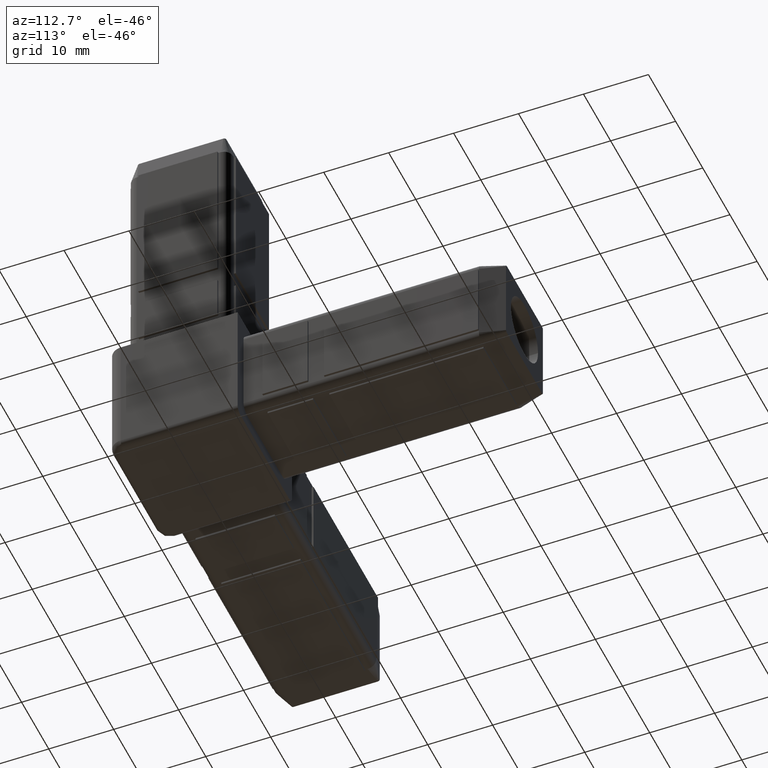
[diagram: clean part render]
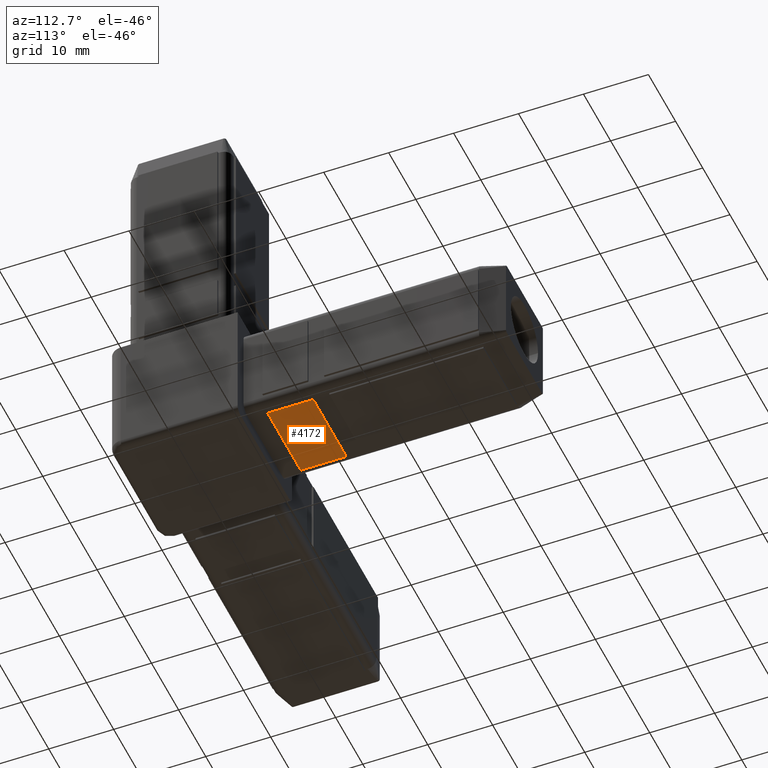
[diagram: same view with one face highlighted and labeled with its STEP entity id]
A machine part, auxiliary view. The second image highlights one B-rep face of the part: STEP entity #4172.
In plain terms, the highlighted planar face has unit normal (0, 0, -1).
Its self-contained STEP definition (entity closure, byte-faithful):
#4070=CARTESIAN_POINT('',(3.900000000000091,3.000000000000199,-8.099999809265114));
#4071=VERTEX_POINT('',#4070);
#4079=CARTESIAN_POINT('',(3.900000000000091,9.999999999998821,-8.099999809265114));
#4080=VERTEX_POINT('',#4079);
#4087=CARTESIAN_POINT('',(3.900000000000091,3.000000000000199,-8.099999809265114));
#4088=DIRECTION('',(0.0,1.0,0.0));
#4089=VECTOR('',#4088,6.999999999998622);
#4090=LINE('',#4087,#4089);
#4091=EDGE_CURVE('',#4071,#4080,#4090,.T.);
#4103=CARTESIAN_POINT('',(16.099999999999682,9.999999999998821,-8.099999809265114));
#4104=VERTEX_POINT('',#4103);
#4111=CARTESIAN_POINT('',(3.900000000000066,9.999999999998821,-8.099999809265114));
#4112=DIRECTION('',(1.0,0.0,0.0));
#4113=VECTOR('',#4112,12.199999999999616);
#4114=LINE('',#4111,#4113);
#4115=EDGE_CURVE('',#4080,#4104,#4114,.T.);
#4127=CARTESIAN_POINT('',(16.099999999999682,3.000000000000199,-8.099999809265114));
#4128=VERTEX_POINT('',#4127);
#4135=CARTESIAN_POINT('',(16.099999999999682,9.999999999998821,-8.099999809265114));
#4136=DIRECTION('',(0.0,-1.0,0.0));
#4137=VECTOR('',#4136,6.999999999998622);
#4138=LINE('',#4135,#4137);
#4139=EDGE_CURVE('',#4104,#4128,#4138,.T.);
#4149=CARTESIAN_POINT('',(16.099999999999707,3.000000000000199,-8.099999809265114));
#4150=DIRECTION('',(-1.0,0.0,0.0));
#4151=VECTOR('',#4150,12.199999999999616);
#4152=LINE('',#4149,#4151);
#4153=EDGE_CURVE('',#4128,#4071,#4152,.T.);
#4161=CARTESIAN_POINT('',(17.320012000047313,2.299987999954240,-8.099999809265114));
#4162=DIRECTION('',(0.0,0.0,-1.0));
#4163=DIRECTION('',(-1.0,0.0,0.0));
#4164=AXIS2_PLACEMENT_3D('',#4161,#4162,#4163);
#4165=PLANE('',#4164);
#4166=ORIENTED_EDGE('',*,*,#4091,.T.);
#4167=ORIENTED_EDGE('',*,*,#4115,.T.);
#4168=ORIENTED_EDGE('',*,*,#4139,.T.);
#4169=ORIENTED_EDGE('',*,*,#4153,.T.);
#4170=EDGE_LOOP('',(#4166,#4167,#4168,#4169));
#4171=FACE_OUTER_BOUND('',#4170,.T.);
#4172=ADVANCED_FACE('',(#4171),#4165,.T.);